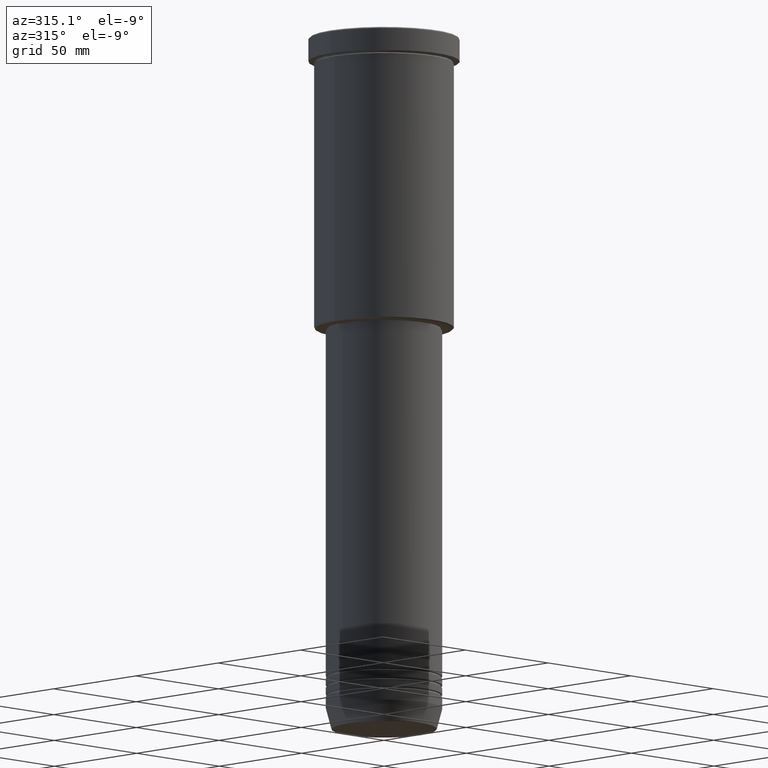
[diagram: clean part render]
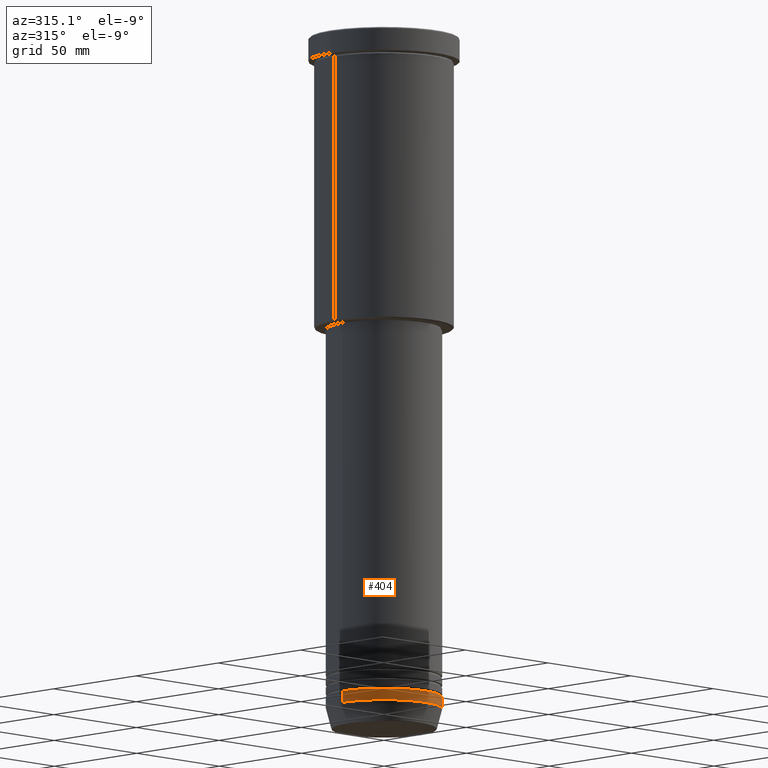
[diagram: same view with one face highlighted and labeled with its STEP entity id]
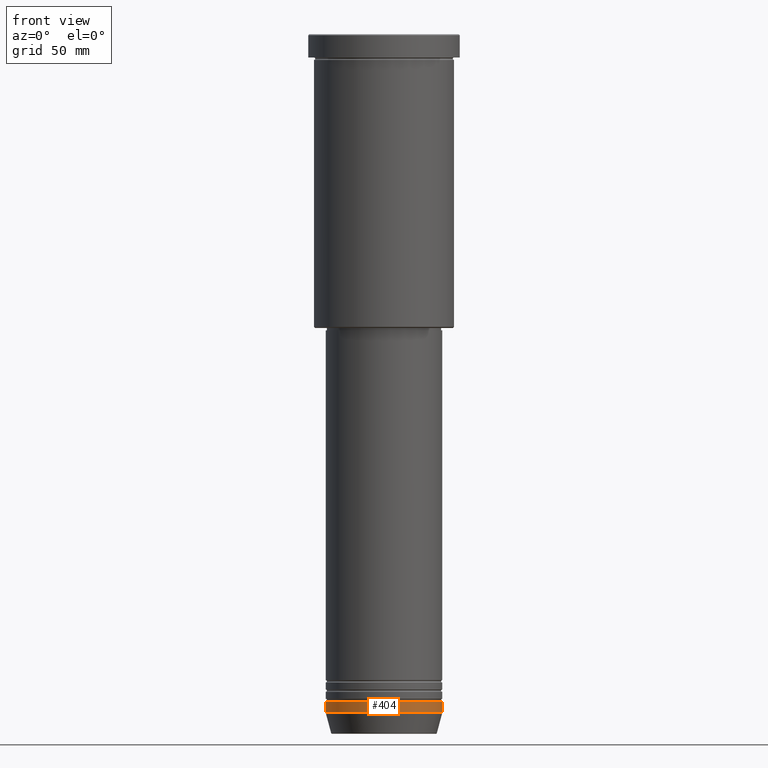
[diagram: same view with one face highlighted and labeled with its STEP entity id]
A machine part, auxiliary view. The second image highlights one B-rep face of the part: STEP entity #404.
A second angle (front view) of the same face is appended — the face is thin or edge-on in the first view.
In plain terms, the highlighted cylindrical surface (partial cylindrical patch) has radius 25 mm, axis along (-0, -0, 1).
Its self-contained STEP definition (entity closure, byte-faithful):
#17 = CARTESIAN_POINT ( 'NONE',  ( -25.00000000000000000, 3.061616997868383043E-15, 0.000000000000000000 ) ) ;
#33 = CARTESIAN_POINT ( 'NONE',  ( -25.00000000000000000, 3.061616997868383043E-15, -291.0000000000000000 ) ) ;
#121 = DIRECTION ( 'NONE',  ( 1.000000000000000000, 0.000000000000000000, 0.000000000000000000 ) ) ;
#178 = CIRCLE ( 'NONE', #640, 25.00000000000000000 ) ;
#207 = CARTESIAN_POINT ( 'NONE',  ( -25.00000000000000000, 3.061616997868383043E-15, -286.0000000000000000 ) ) ;
#208 = DIRECTION ( 'NONE',  ( -0.000000000000000000, -0.000000000000000000, 1.000000000000000000 ) ) ;
#258 = ORIENTED_EDGE ( 'NONE', *, *, #376, .F. ) ;
#266 = ORIENTED_EDGE ( 'NONE', *, *, #704, .T. ) ;
#293 = DIRECTION ( 'NONE',  ( 1.000000000000000000, 0.000000000000000000, 0.000000000000000000 ) ) ;
#376 = EDGE_CURVE ( 'NONE', #985, #1110, #178, .T. ) ;
#404 = ADVANCED_FACE ( 'NONE', ( #1119 ), #1105, .T. ) ;
#406 = CARTESIAN_POINT ( 'NONE',  ( 0.000000000000000000, 0.000000000000000000, -286.0000000000000000 ) ) ;
#438 = AXIS2_PLACEMENT_3D ( 'NONE', #770, #208, #293 ) ;
#466 = VERTEX_POINT ( 'NONE', #669 ) ;
#480 = DIRECTION ( 'NONE',  ( -0.000000000000000000, -0.000000000000000000, 1.000000000000000000 ) ) ;
#490 = VECTOR ( 'NONE', #1018, 1000.000000000000000 ) ;
#496 = EDGE_CURVE ( 'NONE', #991, #985, #576, .T. ) ;
#499 = ORIENTED_EDGE ( 'NONE', *, *, #518, .T. ) ;
#518 = EDGE_CURVE ( 'NONE', #466, #1110, #878, .T. ) ;
#526 = VECTOR ( 'NONE', #713, 1000.000000000000000 ) ;
#576 = LINE ( 'NONE', #17, #490 ) ;
#640 = AXIS2_PLACEMENT_3D ( 'NONE', #406, #1009, #121 ) ;
#669 = CARTESIAN_POINT ( 'NONE',  ( 25.00000000000000000, 0.000000000000000000, -291.0000000000000000 ) ) ;
#704 = EDGE_CURVE ( 'NONE', #991, #466, #885, .T. ) ;
#713 = DIRECTION ( 'NONE',  ( -0.000000000000000000, -0.000000000000000000, 1.000000000000000000 ) ) ;
#747 = CARTESIAN_POINT ( 'NONE',  ( 0.000000000000000000, 0.000000000000000000, -291.0000000000000000 ) ) ;
#770 = CARTESIAN_POINT ( 'NONE',  ( 0.000000000000000000, 0.000000000000000000, 0.000000000000000000 ) ) ;
#803 = CARTESIAN_POINT ( 'NONE',  ( 25.00000000000000000, 0.000000000000000000, -286.0000000000000000 ) ) ;
#842 = ORIENTED_EDGE ( 'NONE', *, *, #496, .F. ) ;
#878 = LINE ( 'NONE', #1148, #526 ) ;
#885 = CIRCLE ( 'NONE', #1069, 25.00000000000000000 ) ;
#985 = VERTEX_POINT ( 'NONE', #207 ) ;
#991 = VERTEX_POINT ( 'NONE', #33 ) ;
#1001 = EDGE_LOOP ( 'NONE', ( #842, #266, #499, #258 ) ) ;
#1004 = DIRECTION ( 'NONE',  ( 1.000000000000000000, 0.000000000000000000, 0.000000000000000000 ) ) ;
#1009 = DIRECTION ( 'NONE',  ( -0.000000000000000000, -0.000000000000000000, 1.000000000000000000 ) ) ;
#1018 = DIRECTION ( 'NONE',  ( -0.000000000000000000, -0.000000000000000000, 1.000000000000000000 ) ) ;
#1069 = AXIS2_PLACEMENT_3D ( 'NONE', #747, #480, #1004 ) ;
#1105 = CYLINDRICAL_SURFACE ( 'NONE', #438, 25.00000000000000000 ) ;
#1110 = VERTEX_POINT ( 'NONE', #803 ) ;
#1119 = FACE_OUTER_BOUND ( 'NONE', #1001, .T. ) ;
#1148 = CARTESIAN_POINT ( 'NONE',  ( 25.00000000000000000, 0.000000000000000000, 0.000000000000000000 ) ) ;